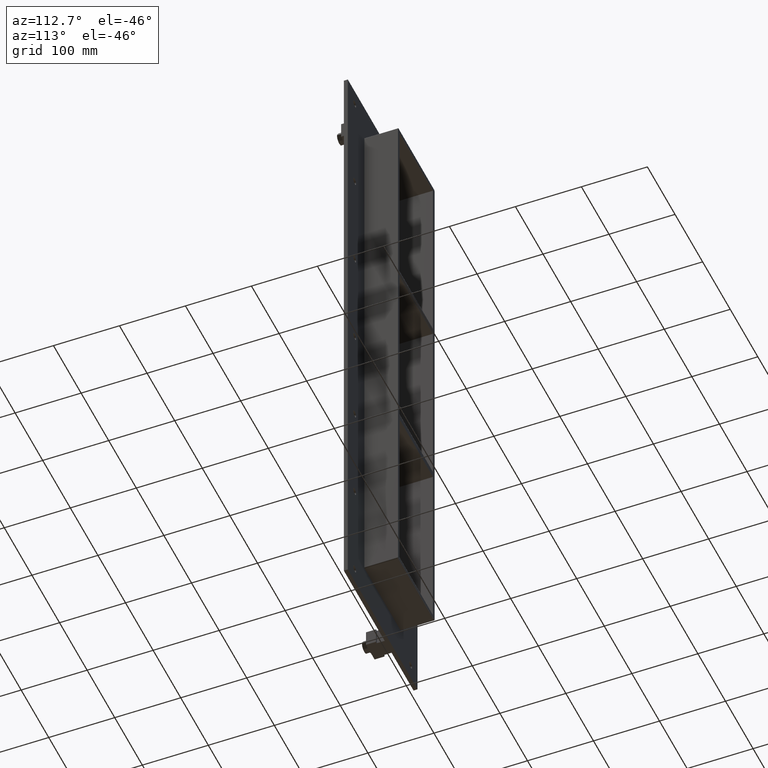
[diagram: clean part render]
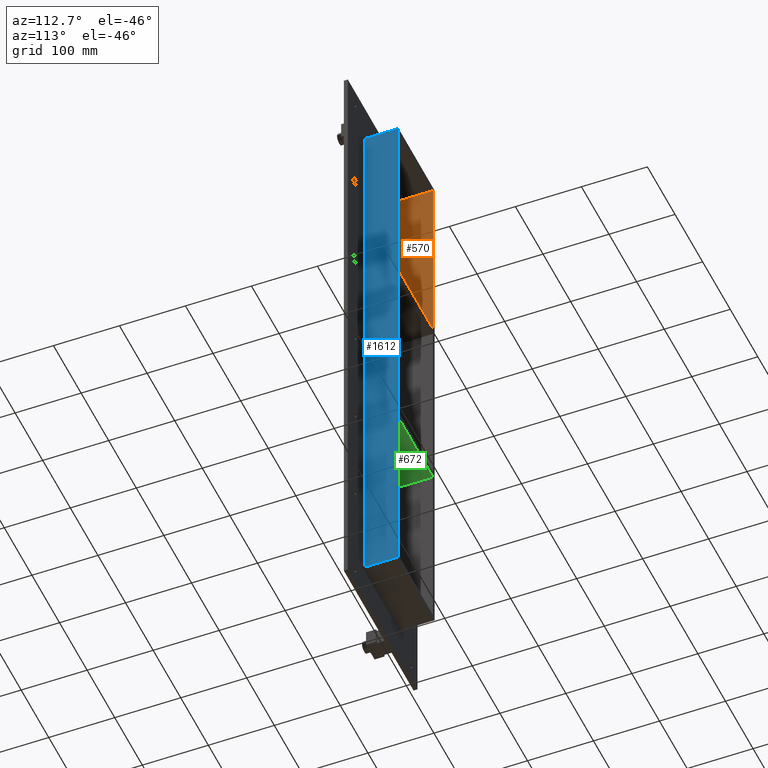
[diagram: same view with three faces highlighted in distinct colors, each labeled with its STEP entity id]
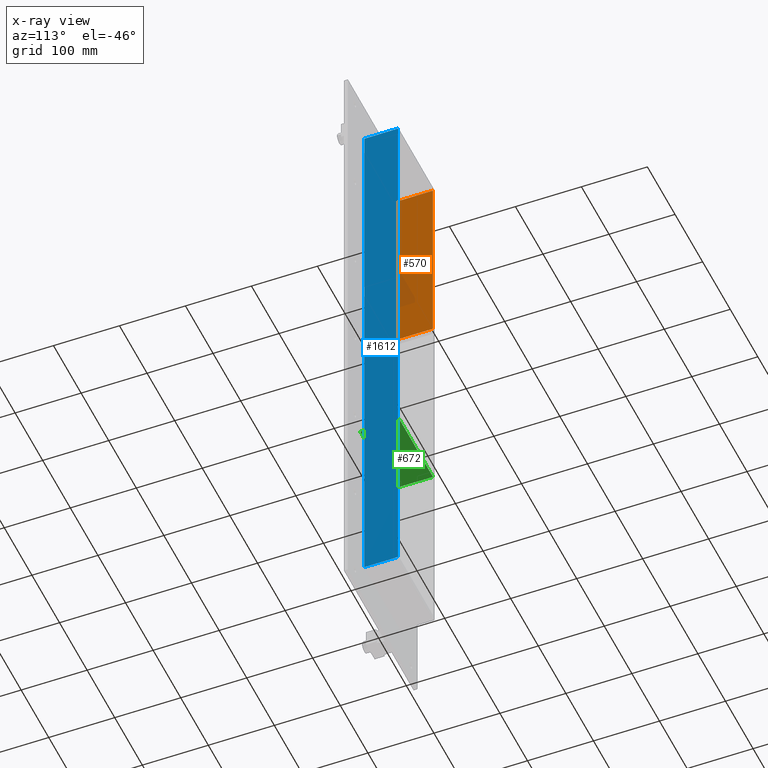
[diagram: x-ray of the same camera — body ghosted, the three highlighted faces saturated]
A machine part, auxiliary view with three faces highlighted in distinct colors.
The next image is the same camera in x-ray (body ghosted, the three faces saturated) — at least one of them is partly hidden behind the body in this view.
Their STEP definitions:

[orange] entity #570 — the highlighted planar face has unit normal (-1, 0, 0).
#505=CARTESIAN_POINT('',(-60.249999999998735,-3.0,149.00000000000023));
#506=VERTEX_POINT('',#505);
#523=CARTESIAN_POINT('',(-60.249999999998735,57.0,149.00000000000023));
#524=VERTEX_POINT('',#523);
#531=CARTESIAN_POINT('',(-60.25,-3.0,149.00000000000023));
#532=DIRECTION('',(0.0,1.0,0.0));
#533=VECTOR('',#532,60.000000000000007);
#534=LINE('',#531,#533);
#535=EDGE_CURVE('',#506,#524,#534,.T.);
#540=CARTESIAN_POINT('',(-60.25,0.0,-427.0));
#541=DIRECTION('',(-1.0,0.0,0.0));
#542=DIRECTION('',(0.0,0.0,1.0));
#543=AXIS2_PLACEMENT_3D('',#540,#541,#542);
#544=PLANE('',#543);
#545=ORIENTED_EDGE('',*,*,#535,.T.);
#546=CARTESIAN_POINT('',(-60.25,57.0,427.0));
#547=VERTEX_POINT('',#546);
#548=CARTESIAN_POINT('',(-60.25,57.0,427.00000000000011));
#549=DIRECTION('',(0.0,0.0,-1.0));
#550=VECTOR('',#549,277.99999999999983);
#551=LINE('',#548,#550);
#552=EDGE_CURVE('',#547,#524,#551,.T.);
#553=ORIENTED_EDGE('',*,*,#552,.F.);
#554=CARTESIAN_POINT('',(-60.25,-3.0,427.0));
#555=VERTEX_POINT('',#554);
#556=CARTESIAN_POINT('',(-60.25,-3.0,427.00000000000011));
#557=DIRECTION('',(0.0,1.0,0.0));
#558=VECTOR('',#557,60.0);
#559=LINE('',#556,#558);
#560=EDGE_CURVE('',#555,#547,#559,.T.);
#561=ORIENTED_EDGE('',*,*,#560,.F.);
#562=CARTESIAN_POINT('',(-60.25,-3.0,149.00000000000028));
#563=DIRECTION('',(0.0,0.0,1.0));
#564=VECTOR('',#563,277.99999999999983);
#565=LINE('',#562,#564);
#566=EDGE_CURVE('',#506,#555,#565,.T.);
#567=ORIENTED_EDGE('',*,*,#566,.F.);
#568=EDGE_LOOP('',(#545,#553,#561,#567));
#569=FACE_OUTER_BOUND('',#568,.T.);
#570=ADVANCED_FACE('',(#569),#544,.F.);

[blue] entity #1612 — the highlighted planar face has unit normal (1, 0, 0).
#874=CARTESIAN_POINT('',(66.25,6.000000000000001,-431.0));
#875=VERTEX_POINT('',#874);
#883=CARTESIAN_POINT('',(66.25,6.000000000000001,431.0));
#884=VERTEX_POINT('',#883);
#885=CARTESIAN_POINT('',(66.25,6.000000000000001,431.0));
#886=DIRECTION('',(0.0,0.0,-1.0));
#887=VECTOR('',#886,862.0);
#888=LINE('',#885,#887);
#889=EDGE_CURVE('',#884,#875,#888,.T.);
#1254=CARTESIAN_POINT('',(66.25,57.0,-431.0));
#1255=VERTEX_POINT('',#1254);
#1263=CARTESIAN_POINT('',(66.25,57.0,-431.0));
#1264=DIRECTION('',(0.0,-1.0,0.0));
#1265=VECTOR('',#1264,51.0);
#1266=LINE('',#1263,#1265);
#1267=EDGE_CURVE('',#1255,#875,#1266,.T.);
#1577=CARTESIAN_POINT('',(66.25,57.0,431.0));
#1578=VERTEX_POINT('',#1577);
#1579=CARTESIAN_POINT('',(66.25,6.000000000000001,431.0));
#1580=DIRECTION('',(0.0,1.0,0.0));
#1581=VECTOR('',#1580,51.0);
#1582=LINE('',#1579,#1581);
#1583=EDGE_CURVE('',#884,#1578,#1582,.T.);
#1596=CARTESIAN_POINT('',(66.25,0.0,433.00000000000006));
#1597=DIRECTION('',(1.0,0.0,0.0));
#1598=DIRECTION('',(0.0,0.0,-1.0));
#1599=AXIS2_PLACEMENT_3D('',#1596,#1597,#1598);
#1600=PLANE('',#1599);
#1601=ORIENTED_EDGE('',*,*,#889,.T.);
#1602=ORIENTED_EDGE('',*,*,#1267,.F.);
#1603=CARTESIAN_POINT('',(66.25,57.0,431.0));
#1604=DIRECTION('',(0.0,0.0,-1.0));
#1605=VECTOR('',#1604,862.0);
#1606=LINE('',#1603,#1605);
#1607=EDGE_CURVE('',#1578,#1255,#1606,.T.);
#1608=ORIENTED_EDGE('',*,*,#1607,.F.);
#1609=ORIENTED_EDGE('',*,*,#1583,.F.);
#1610=EDGE_LOOP('',(#1601,#1602,#1608,#1609));
#1611=FACE_OUTER_BOUND('',#1610,.T.);
#1612=ADVANCED_FACE('',(#1611),#1600,.T.);

[green] entity #672 — the highlighted planar face has unit normal (0, 0, -1).
#633=CARTESIAN_POINT('',(60.249999999996362,-3.0,-149.00000000001097));
#634=DIRECTION('',(0.0,0.0,-1.0));
#635=DIRECTION('',(-1.0,0.0,0.0));
#636=AXIS2_PLACEMENT_3D('',#633,#634,#635);
#637=PLANE('',#636);
#638=CARTESIAN_POINT('',(60.249999999996362,-3.0,-149.00000000001097));
#639=VERTEX_POINT('',#638);
#640=CARTESIAN_POINT('',(-60.249999999998735,-3.0,-149.00000000001114));
#641=VERTEX_POINT('',#640);
#642=CARTESIAN_POINT('',(60.249999999996362,-3.0,-149.00000000001097));
#643=DIRECTION('',(-1.0,0.0,0.0));
#644=VECTOR('',#643,120.49999999999511);
#645=LINE('',#642,#644);
#646=EDGE_CURVE('',#639,#641,#645,.T.);
#647=ORIENTED_EDGE('',*,*,#646,.T.);
#648=CARTESIAN_POINT('',(-60.249999999998735,57.0,-149.00000000001114));
#649=VERTEX_POINT('',#648);
#650=CARTESIAN_POINT('',(-60.25,57.000000000000007,-149.00000000001117));
#651=DIRECTION('',(0.0,-1.0,0.0));
#652=VECTOR('',#651,60.000000000000007);
#653=LINE('',#650,#652);
#654=EDGE_CURVE('',#649,#641,#653,.T.);
#655=ORIENTED_EDGE('',*,*,#654,.F.);
#656=CARTESIAN_POINT('',(60.249999999996369,57.0,-149.00000000001097));
#657=VERTEX_POINT('',#656);
#658=CARTESIAN_POINT('',(60.249999999996362,57.0,-149.00000000001097));
#659=DIRECTION('',(-1.0,0.0,0.0));
#660=VECTOR('',#659,120.49999999999511);
#661=LINE('',#658,#660);
#662=EDGE_CURVE('',#657,#649,#661,.T.);
#663=ORIENTED_EDGE('',*,*,#662,.F.);
#664=CARTESIAN_POINT('',(60.25,-3.0,-149.00000000001094));
#665=DIRECTION('',(0.0,1.0,0.0));
#666=VECTOR('',#665,60.000000000000007);
#667=LINE('',#664,#666);
#668=EDGE_CURVE('',#639,#657,#667,.T.);
#669=ORIENTED_EDGE('',*,*,#668,.F.);
#670=EDGE_LOOP('',(#647,#655,#663,#669));
#671=FACE_OUTER_BOUND('',#670,.T.);
#672=ADVANCED_FACE('',(#671),#637,.T.);